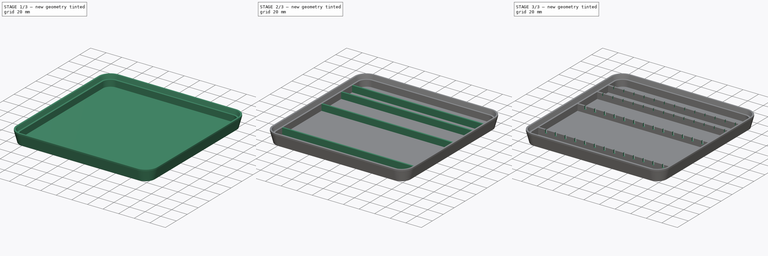
[diagram: build sequence overview — one tinted view per stage of 3, left to right]
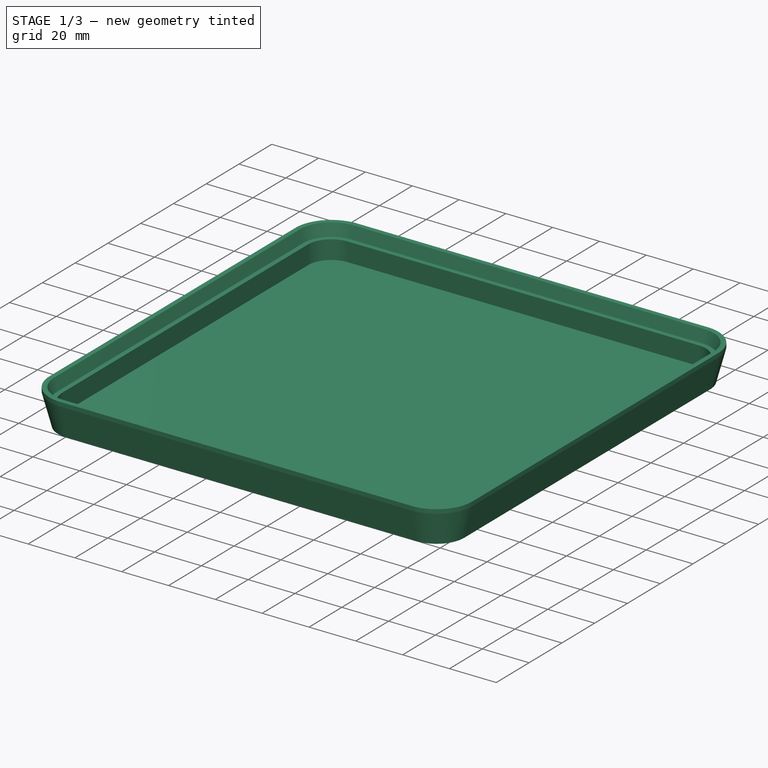
[diagram: stage 1 of 3 — iso view after this stage's code; geometry added in this stage tinted green]
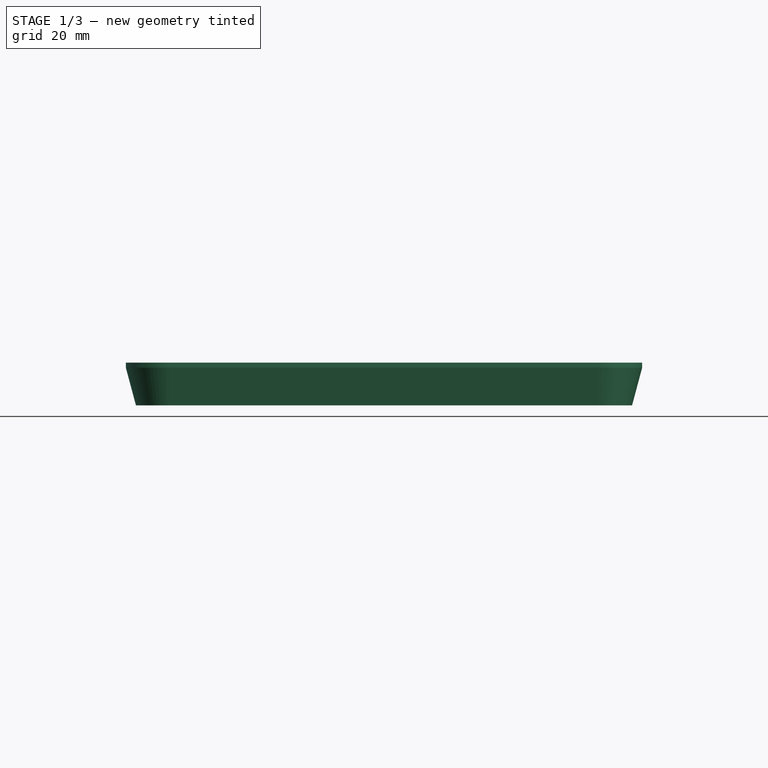
[diagram: stage 1 of 3 — front view after this stage's code; geometry added in this stage tinted green]
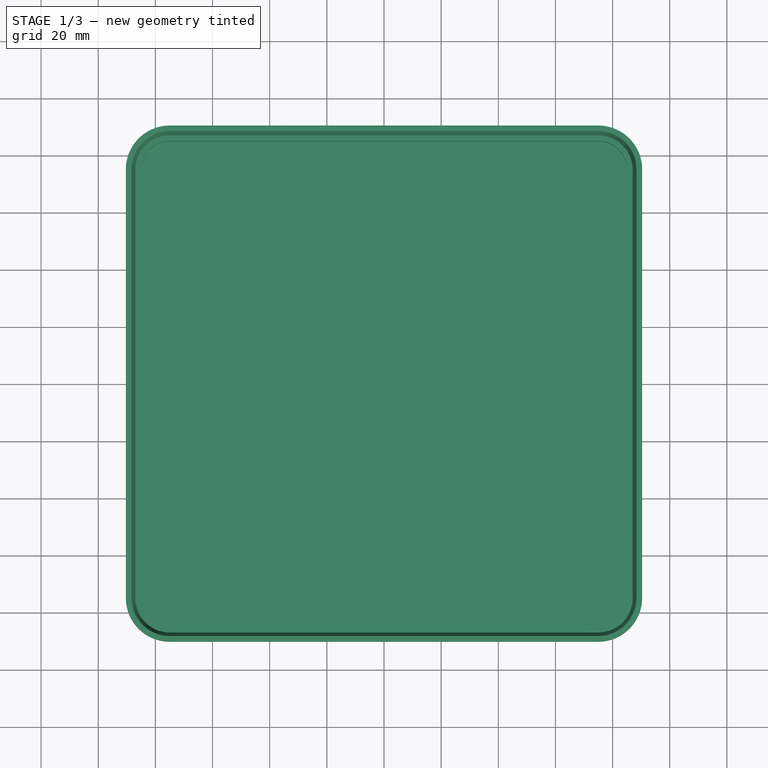
[diagram: stage 1 of 3 — top view after this stage's code; geometry added in this stage tinted green]
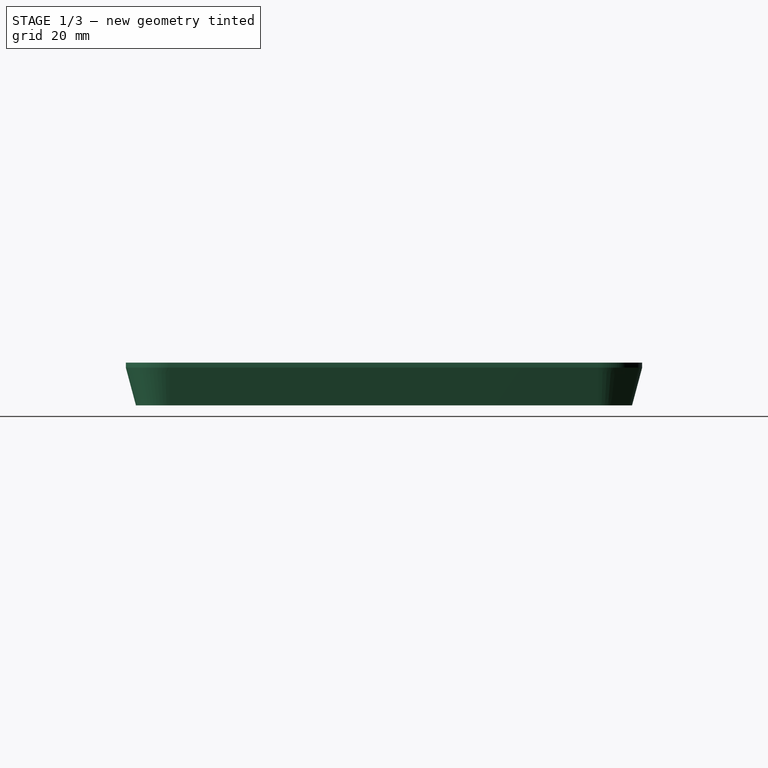
[diagram: stage 1 of 3 — right view after this stage's code; geometry added in this stage tinted green]
FCSTD DOCUMENT  (FreeCAD 1.0R39319 (Git))
Label: Box-cover
License: All rights reserved
LicenseURL: https://en.wikipedia.org/wiki/All_rights_reserved
objects: Sketcher::SketchObject×6, PartDesign::Pad×2, PartDesign::Pocket×2, PartDesign::AdditivePipe×1, PartDesign::Body×1
note: 28 computed .brp shape members not serialized (recipe doc carries the construction recipe); baked Part::Feature solids carry a one-line shape summary decoded from their .brp

FEATURE [Sketcher::SketchObject] Sketch
  ArcFitTolerance = 1e-06
  AttachmentSupport = -> [XZ_Plane]
  FullyConstrained = true
  MakeInternals = false
  MapMode = 5
  Placement = pos=(0,0,0) rot=(1,0,0;1.5708rad)
  sketch-geometry (7):
    g0: LineSegment StartX=85 StartY=0 StartZ=0 EndX=86.8 EndY=0 EndZ=0
    g1: LineSegment StartX=86.8 StartY=0 StartZ=0 EndX=90.3397 EndY=13.2105 EndZ=0
    g2: LineSegment StartX=90.3397 StartY=13.2105 StartZ=0 EndX=90.3397 EndY=15 EndZ=0
    g3: LineSegment StartX=90.3397 StartY=15 StartZ=0 EndX=88.3397 EndY=15 EndZ=0
    g4: LineSegment StartX=88.3397 StartY=15 StartZ=0 EndX=87 EndY=10 EndZ=0
    g5: LineSegment StartX=87 StartY=10 StartZ=0 EndX=85 EndY=10 EndZ=0
    g6: LineSegment StartX=85 StartY=10 StartZ=0 EndX=85 EndY=0 EndZ=0
  constraints (21):
    c: PointOnObject(g0,g-1)
    c: Coincident(g0,g1)
    c: Vertical(g2)
    c: Coincident(g2,g3)
    c: Horizontal(g3)
    c: Coincident(g3,g4)
    c: Coincident(g4,g5)
    c: Horizontal(g5)
    c: Coincident(g5,g6)
    c: Vertical(g6)
    c: Horizontal(g0)
    c: Coincident(g0,g6)
    c: Parallel(g1,g4)
    c: DistanceY(g4,g3) = 5
    c: Angle(g-1,g1) = 1.309
    c: Equal(g3,g5)
    c: DistanceX(g3,g3) = 2
    c: DistanceY(g6,g6) = 10
    c: DistanceX(g0) = 85
    c: DistanceX(g0,g0) = 1.8
    c: Coincident(g1,g2)
FEATURE [Sketcher::SketchObject] Sketch001
  ArcFitTolerance = 1e-06
  AttachmentSupport = -> [XY_Plane]
  FullyConstrained = false
  MakeInternals = false
  MapMode = 5
  sketch-geometry (20):
    g0: Circle [constr] CenterX=20 CenterY=20 CenterZ=0 NormalX=0 NormalY=0 NormalZ=1 AngleXU=0 Radius=11.75
    g1: Circle [constr] CenterX=20 CenterY=20 CenterZ=0 NormalX=0 NormalY=0 NormalZ=1 AngleXU=0 Radius=20
    g2: Circle [constr] CenterX=60 CenterY=60 CenterZ=0 NormalX=0 NormalY=0 NormalZ=1 AngleXU=0 Radius=11.75
    g3: Circle [constr] CenterX=60 CenterY=60 CenterZ=0 NormalX=0 NormalY=0 NormalZ=1 AngleXU=0 Radius=20
    g4: Circle [constr] CenterX=20 CenterY=60 CenterZ=0 NormalX=0 NormalY=0 NormalZ=1 AngleXU=0 Radius=11.75
    g5: Circle [constr] CenterX=20 CenterY=60 CenterZ=0 NormalX=0 NormalY=0 NormalZ=1 AngleXU=0 Radius=20
    g6: Circle [constr] CenterX=60 CenterY=20 CenterZ=0 NormalX=0 NormalY=0 NormalZ=1 AngleXU=0 Radius=11.75
    g7: Circle [constr] CenterX=60 CenterY=20 CenterZ=0 NormalX=0 NormalY=0 NormalZ=1 AngleXU=0 Radius=20
    g8: LineSegment StartX=-85 StartY=75 StartZ=0 EndX=-85 EndY=-75 EndZ=0
    g9: LineSegment StartX=-75 StartY=-85 StartZ=0 EndX=75 EndY=-85 EndZ=0
    g10: LineSegment StartX=85 StartY=-75 StartZ=0 EndX=85 EndY=75 EndZ=0
    g11: LineSegment StartX=75 StartY=85 StartZ=0 EndX=-75 EndY=85 EndZ=0
    g12: ArcOfCircle CenterX=-75 CenterY=75 CenterZ=0 NormalX=0 NormalY=0 NormalZ=1 AngleXU=0 Radius=10 StartAngle=1.5708 EndAngle=3.14159
    g13: GeomPoint [constr] X=-85 Y=85 Z=0
    g14: ArcOfCircle CenterX=75 CenterY=75 CenterZ=0 NormalX=0 NormalY=0 NormalZ=1 AngleXU=0 Radius=10 StartAngle=0 EndAngle=1.5708
    g15: GeomPoint [constr] X=85 Y=85 Z=0
    g16: ArcOfCircle CenterX=75 CenterY=-75 CenterZ=0 NormalX=0 NormalY=0 NormalZ=1 AngleXU=0 Radius=10 StartAngle=4.71239 EndAngle=6.28319
    g17: GeomPoint [constr] X=85 Y=-85 Z=0
    g18: ArcOfCircle CenterX=-75 CenterY=-75 CenterZ=0 NormalX=0 NormalY=0 NormalZ=1 AngleXU=0 Radius=10 StartAngle=3.14159 EndAngle=4.71239
    g19: GeomPoint [constr] X=-85 Y=-85 Z=0
  constraints (45):
    c: Diameter(g0) = 23.5
    c: Coincident(g1,g0)
    c: Diameter(g1) = 40
    c: Coincident(g3,g2)
    c: Coincident(g5,g4)
    c: Tangent(g5,g1)
    c: Tangent(g5,g3)
    c: Tangent(g3,g7)
    c: Tangent(g1,g7)
    c: Vertical(g4,g0)
    c: Horizontal(g4,g2)
    c: Equal(g3,g7)
    c: Equal(g7,g1)
    c: Equal(g1,g5)
    c: Equal(g6,g2)
    c: Equal(g2,g4)
    c: Equal(g4,g0)
    c: Tangent(g1,g-2)
    c: Vertical(g8)
    c: Vertical(g10)
    c: Horizontal(g9)
    c: Horizontal(g11)
    c: Symmetric(g13,g17,g-1)
    c: PointOnObject(g13,g8)
    c: PointOnObject(g13,g11)
    c: Tangent(g8,g12) = -1.5708
    c: Tangent(g11,g12) = -1.5708
    c: PointOnObject(g15,g11)
    c: PointOnObject(g15,g10)
    c: Tangent(g11,g14) = -1.5708
    c: Tangent(g10,g14) = -1.5708
    c: PointOnObject(g17,g10)
    c: PointOnObject(g17,g9)
    c: Tangent(g10,g16) = -1.5708
    c: Tangent(g9,g16) = -1.5708
    c: PointOnObject(g19,g9)
    c: PointOnObject(g19,g8)
    c: Tangent(g9,g18) = -1.5708
    c: Tangent(g8,g18) = -1.5708
    c: Equal(g14,g12)
    c: Equal(g12,g18)
    c: Equal(g18,g16)
    c: Radius(g14) = 10
    c: Equal(g10,g11)
    c: Distance(g-1,g10) = 85
FEATURE [PartDesign::AdditivePipe] AdditivePipe  label="ramen"
  AuxilleryCurvelinear = true
  AuxillerySpineTangent = false
  Binormal = (0,0,0)
  Mode = 0
  Placement = pos=(0,0,0) rot=(1,0,0;1.5708rad)
  Profile = -> Sketch
  Refine = true
  Spine = -> Sketch001
  SpineTangent = false
  Suppressed = false
  Transformation = 0
  Transition = 0
FEATURE [Sketcher::SketchObject] Sketch002
  ArcFitTolerance = 1e-06
  AttachmentSupport = -> [XY_Plane]
  FullyConstrained = false
  MakeInternals = false
  MapMode = 5
  sketch-geometry (20):
    g0: Circle [constr] CenterX=20 CenterY=20 CenterZ=0 NormalX=0 NormalY=0 NormalZ=1 AngleXU=0 Radius=11.75
    g1: Circle [constr] CenterX=20 CenterY=20 CenterZ=0 NormalX=0 NormalY=0 NormalZ=1 AngleXU=0 Radius=20
    g2: Circle [constr] CenterX=60 CenterY=60 CenterZ=0 NormalX=0 NormalY=0 NormalZ=1 AngleXU=0 Radius=11.75
    g3: Circle [constr] CenterX=60 CenterY=60 CenterZ=0 NormalX=0 NormalY=0 NormalZ=1 AngleXU=0 Radius=20
    g4: Circle [constr] CenterX=20 CenterY=60 CenterZ=0 NormalX=0 NormalY=0 NormalZ=1 AngleXU=0 Radius=11.75
    g5: Circle [constr] CenterX=20 CenterY=60 CenterZ=0 NormalX=0 NormalY=0 NormalZ=1 AngleXU=0 Radius=20
    g6: Circle [constr] CenterX=60 CenterY=20 CenterZ=0 NormalX=0 NormalY=0 NormalZ=1 AngleXU=0 Radius=11.75
    g7: Circle [constr] CenterX=60 CenterY=20 CenterZ=0 NormalX=0 NormalY=0 NormalZ=1 AngleXU=0 Radius=20
    g8: LineSegment StartX=-85 StartY=75 StartZ=0 EndX=-85 EndY=-75 EndZ=0
    g9: LineSegment StartX=-75 StartY=-85 StartZ=0 EndX=75 EndY=-85 EndZ=0
    g10: LineSegment StartX=85 StartY=-75 StartZ=0 EndX=85 EndY=75 EndZ=0
    g11: LineSegment StartX=75 StartY=85 StartZ=0 EndX=-75 EndY=85 EndZ=0
    g12: ArcOfCircle CenterX=-75 CenterY=75 CenterZ=0 NormalX=0 NormalY=0 NormalZ=1 AngleXU=0 Radius=10 StartAngle=1.5708 EndAngle=3.14159
    g13: GeomPoint [constr] X=-85 Y=85 Z=0
    g14: ArcOfCircle CenterX=75 CenterY=75 CenterZ=0 NormalX=0 NormalY=0 NormalZ=1 AngleXU=0 Radius=10 StartAngle=0 EndAngle=1.5708
    g15: GeomPoint [constr] X=85 Y=85 Z=0
    g16: ArcOfCircle CenterX=75 CenterY=-75 CenterZ=0 NormalX=0 NormalY=0 NormalZ=1 AngleXU=0 Radius=10 StartAngle=4.71239 EndAngle=6.28319
    g17: GeomPoint [constr] X=85 Y=-85 Z=0
    g18: ArcOfCircle CenterX=-75 CenterY=-75 CenterZ=0 NormalX=0 NormalY=0 NormalZ=1 AngleXU=0 Radius=10 StartAngle=3.14159 EndAngle=4.71239
    g19: GeomPoint [constr] X=-85 Y=-85 Z=0
  constraints (45):
    c: Diameter(g0) = 23.5
    c: Coincident(g1,g0)
    c: Diameter(g1) = 40
    c: Coincident(g3,g2)
    c: Coincident(g5,g4)
    c: Tangent(g5,g1)
    c: Tangent(g5,g3)
    c: Tangent(g3,g7)
    c: Tangent(g1,g7)
    c: Vertical(g4,g0)
    c: Horizontal(g4,g2)
    c: Equal(g3,g7)
    c: Equal(g7,g1)
    c: Equal(g1,g5)
    c: Equal(g6,g2)
    c: Equal(g2,g4)
    c: Equal(g4,g0)
    c: Tangent(g1,g-2)
    c: Vertical(g8)
    c: Vertical(g10)
    c: Horizontal(g9)
    c: Horizontal(g11)
    c: Symmetric(g13,g17,g-1)
    c: PointOnObject(g13,g8)
    c: PointOnObject(g13,g11)
    c: Tangent(g8,g12) = -1.5708
    c: Tangent(g11,g12) = -1.5708
    c: PointOnObject(g15,g11)
    c: PointOnObject(g15,g10)
    c: Tangent(g11,g14) = -1.5708
    c: Tangent(g10,g14) = -1.5708
    c: PointOnObject(g17,g10)
    c: PointOnObject(g17,g9)
    c: Tangent(g10,g16) = -1.5708
    c: Tangent(g9,g16) = -1.5708
    c: PointOnObject(g19,g9)
    c: PointOnObject(g19,g8)
    c: Tangent(g9,g18) = -1.5708
    c: Tangent(g8,g18) = -1.5708
    c: Equal(g14,g12)
    c: Equal(g12,g18)
    c: Equal(g18,g16)
    c: Radius(g14) = 10
    c: Equal(g10,g11)
    c: Distance(g-1,g10) = 85
FEATURE [PartDesign::Pad] Pad  label="boden"
  BaseFeature = -> AdditivePipe
  Direction = (0,0,1)
  Length = 2
  Length2 = 10
  Placement = pos=(0,0,0) rot=(1,0,0;1.5708rad)
  Profile = -> Sketch002
  ReferenceAxis = -> Sketch002 [N_Axis]
  Refine = true
  Suppressed = false
  Type = 0
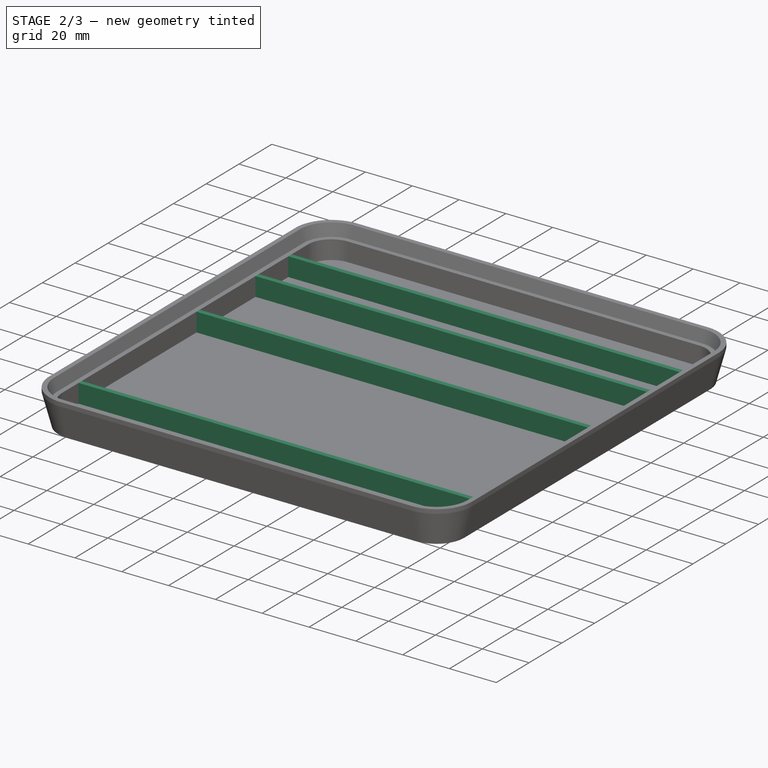
[diagram: stage 2 of 3 — iso view after this stage's code; geometry added in this stage tinted green]
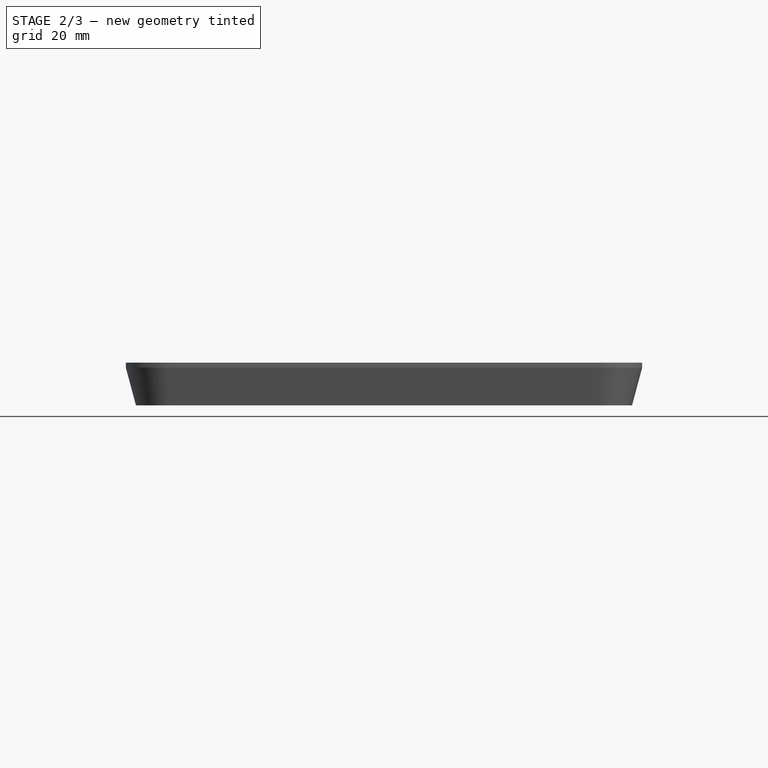
[diagram: stage 2 of 3 — front view after this stage's code; geometry added in this stage tinted green]
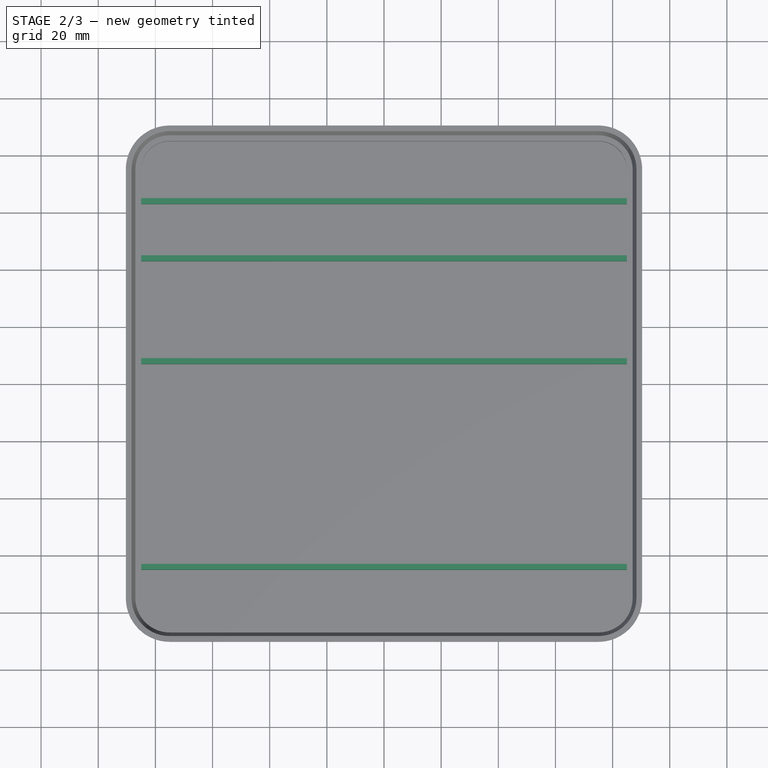
[diagram: stage 2 of 3 — top view after this stage's code; geometry added in this stage tinted green]
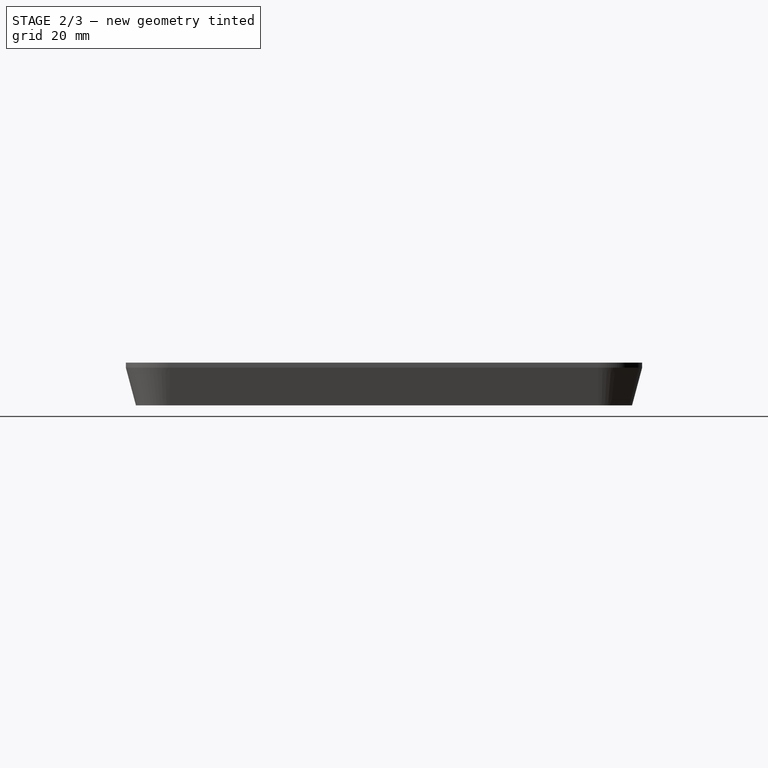
[diagram: stage 2 of 3 — right view after this stage's code; geometry added in this stage tinted green]
FEATURE [Sketcher::SketchObject] Sketch003
  ArcFitTolerance = 1e-06
  AttachmentOffset = pos=(0,0,2) rot=(0,0,1;0rad)
  AttachmentSupport = -> [XY_Plane]
  FullyConstrained = true
  MakeInternals = false
  MapMode = 5
  Placement = pos=(0,0,2) rot=(0,0,1;0rad)
  sketch-geometry (16):
    g0: LineSegment StartX=-85 StartY=-63 StartZ=0 EndX=85 EndY=-63 EndZ=0
    g1: LineSegment StartX=85 StartY=-63 StartZ=0 EndX=85 EndY=-65 EndZ=0
    g2: LineSegment StartX=85 StartY=-65 StartZ=0 EndX=-85 EndY=-65 EndZ=0
    g3: LineSegment StartX=-85 StartY=-65 StartZ=0 EndX=-85 EndY=-63 EndZ=0
    g4: LineSegment StartX=-85 StartY=9 StartZ=0 EndX=85 EndY=9 EndZ=0
    g5: LineSegment StartX=85 StartY=9 StartZ=0 EndX=85 EndY=7 EndZ=0
    g6: LineSegment StartX=85 StartY=7 StartZ=0 EndX=-85 EndY=7 EndZ=0
    g7: LineSegment StartX=-85 StartY=7 StartZ=0 EndX=-85 EndY=9 EndZ=0
    g8: LineSegment StartX=-85 StartY=45 StartZ=0 EndX=85 EndY=45 EndZ=0
    g9: LineSegment StartX=85 StartY=45 StartZ=0 EndX=85 EndY=43 EndZ=0
    g10: LineSegment StartX=85 StartY=43 StartZ=0 EndX=-85 EndY=43 EndZ=0
    g11: LineSegment StartX=-85 StartY=43 StartZ=0 EndX=-85 EndY=45 EndZ=0
    g12: LineSegment StartX=-85 StartY=65 StartZ=0 EndX=85 EndY=65 EndZ=0
    g13: LineSegment StartX=85 StartY=65 StartZ=0 EndX=85 EndY=63 EndZ=0
    g14: LineSegment StartX=85 StartY=63 StartZ=0 EndX=-85 EndY=63 EndZ=0
    g15: LineSegment StartX=-85 StartY=63 StartZ=0 EndX=-85 EndY=65 EndZ=0
  constraints (43):
    c: Horizontal(g0)
    c: Coincident(g0,g1)
    c: Vertical(g1)
    c: Coincident(g1,g2)
    c: Coincident(g2,g3)
    c: Coincident(g3,g0)
    c: Vertical(g3)
    c: Symmetric(g2,g1,g-2)
    c: DistanceX(g1) = 85
    c: DistanceY(g1,g1) = 2
    c: Horizontal(g4)
    c: Coincident(g4,g5)
    c: Vertical(g5)
    c: Coincident(g5,g6)
    c: Coincident(g6,g7)
    c: Coincident(g7,g4)
    c: Vertical(g7)
    c: Symmetric(g6,g5,g-2)
    c: Equal(g5,g1)
    c: Equal(g6,g2)
    c: DistanceY(g1,g4) = 74
    c: DistanceY(g1,g-1) = 65
    c: Horizontal(g8)
    c: Coincident(g8,g9)
    c: Vertical(g9)
    c: Coincident(g9,g10)
    c: Coincident(g10,g11)
    c: Coincident(g11,g8)
    c: Vertical(g11)
    c: Symmetric(g10,g9,g-2)
    c: Horizontal(g12)
    c: Coincident(g12,g13)
    c: Vertical(g13)
    c: Coincident(g13,g14)
    c: Coincident(g14,g15)
    c: Coincident(g15,g12)
    c: Vertical(g15)
    c: Symmetric(g14,g13,g-2)
    c: Equal(g13,g9)
    c: Equal(g9,g1)
    c: Equal(g10,g14)
    c: Equal(g14,g2)
    c: Symmetric(g12,g1,g-1)
FEATURE [PartDesign::Pad] Pad001  label="ablage"
  BaseFeature = -> Pad
  Direction = (0,0,1)
  Length = 8
  Length2 = 10
  Placement = pos=(0,0,0) rot=(1,0,0;1.5708rad)
  Profile = -> Sketch003
  ReferenceAxis = -> Sketch003 [N_Axis]
  Refine = true
  Suppressed = false
  Type = 0
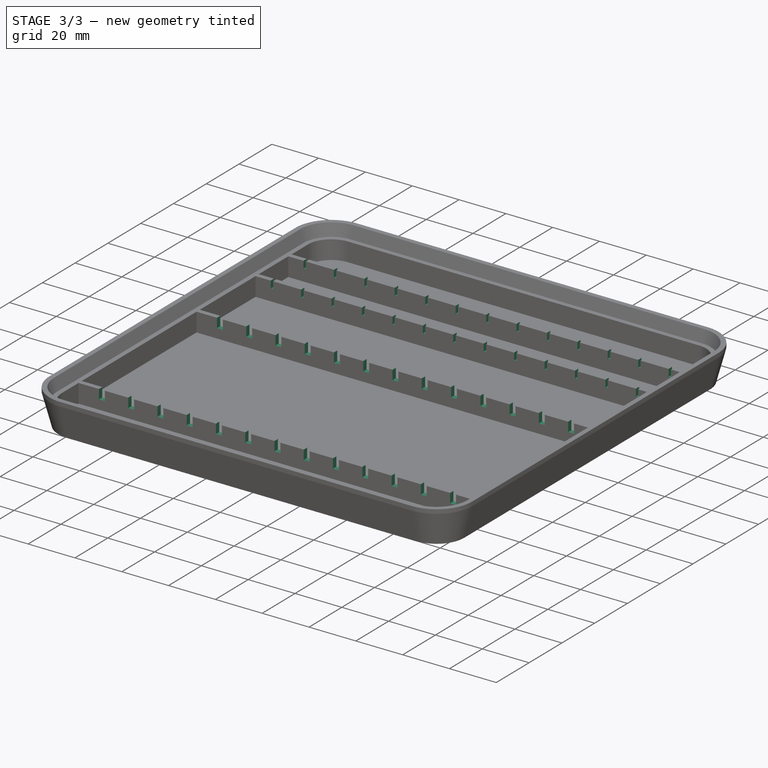
[diagram: stage 3 of 3 — iso view after this stage's code; geometry added in this stage tinted green]
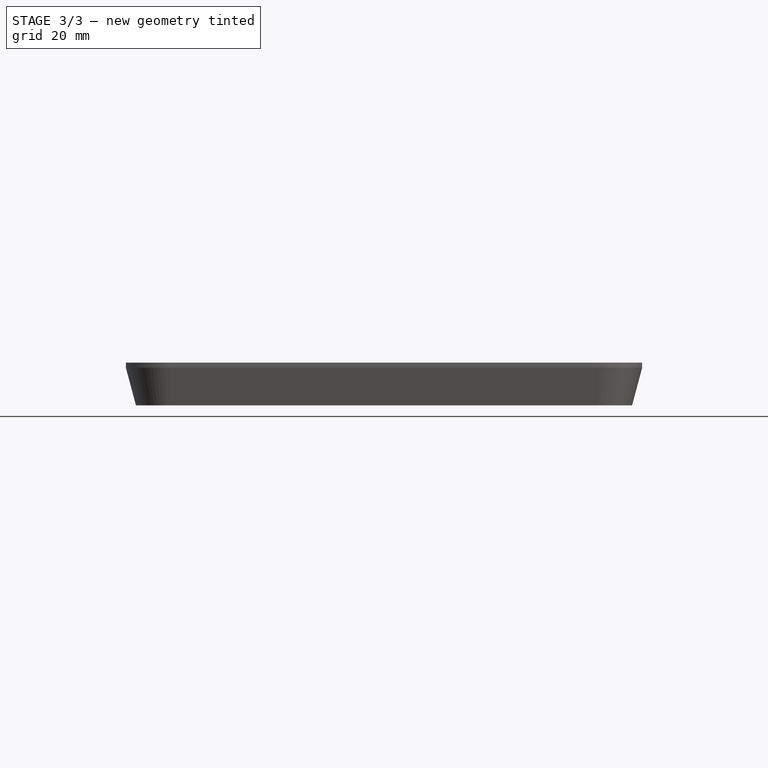
[diagram: stage 3 of 3 — front view after this stage's code; geometry added in this stage tinted green]
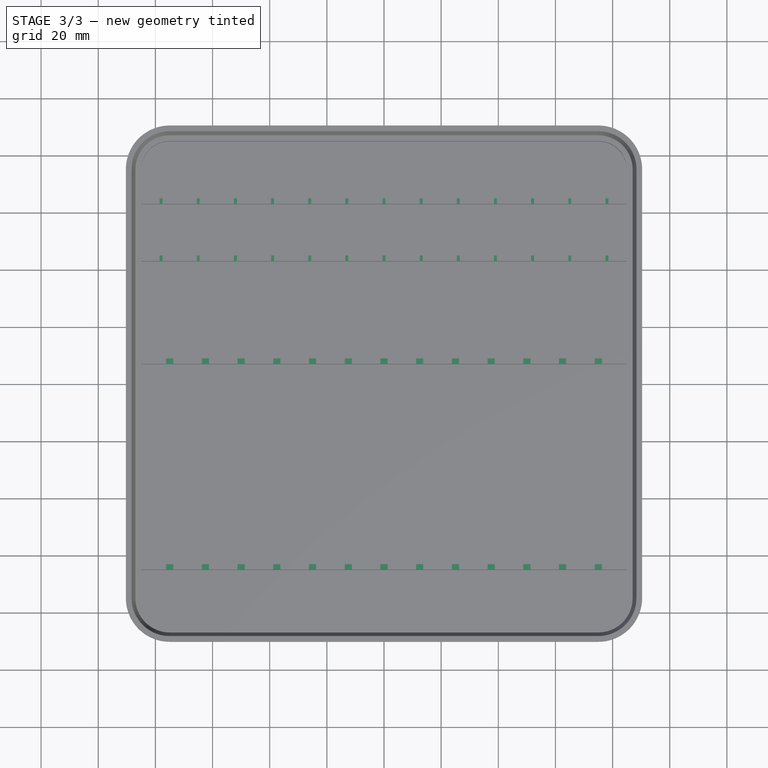
[diagram: stage 3 of 3 — top view after this stage's code; geometry added in this stage tinted green]
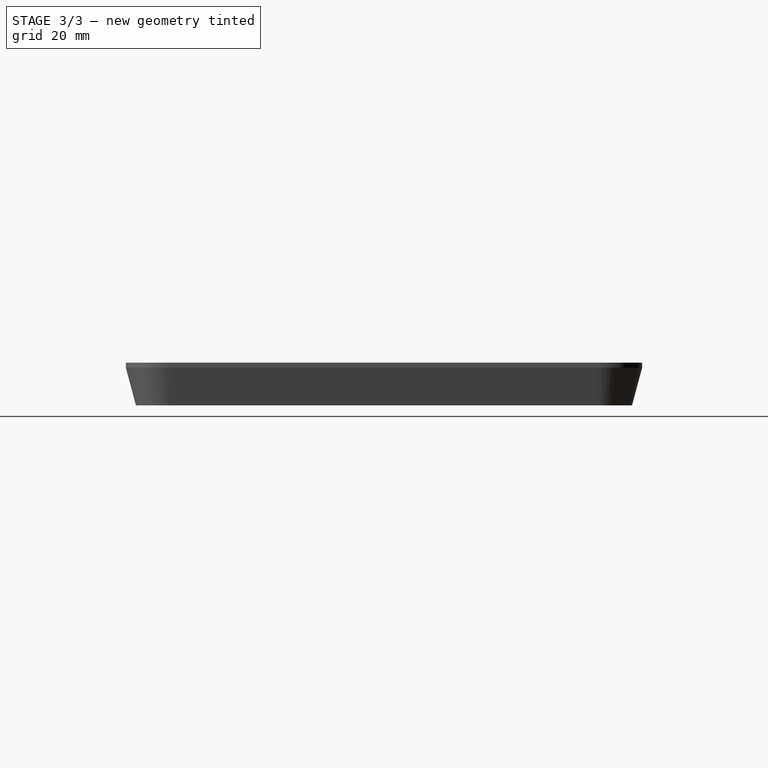
[diagram: stage 3 of 3 — right view after this stage's code; geometry added in this stage tinted green]
FEATURE [Sketcher::SketchObject] Sketch004
  ArcFitTolerance = 1e-06
  AttachmentOffset = pos=(0,0,65) rot=(0,0,1;0rad)
  AttachmentSupport = -> [XZ_Plane]
  FullyConstrained = true
  MakeInternals = false
  MapMode = 5
  Placement = pos=(0,-65,1.44e-14) rot=(1,0,0;1.5708rad)
  sketch-geometry (64):
    g0: LineSegment StartX=-1.25 StartY=10 StartZ=0 EndX=-1.25 EndY=6 EndZ=0
    g1: LineSegment StartX=-1.25 StartY=6 StartZ=0 EndX=1.25 EndY=6 EndZ=0
    g2: LineSegment StartX=1.25 StartY=6 StartZ=0 EndX=1.25 EndY=10 EndZ=0
    g3: LineSegment StartX=1.25 StartY=10 StartZ=0 EndX=-1.25 EndY=10 EndZ=0
    g4: LineSegment StartX=11.25 StartY=10 StartZ=0 EndX=11.25 EndY=6 EndZ=0
    g5: LineSegment StartX=11.25 StartY=6 StartZ=0 EndX=13.75 EndY=6 EndZ=0
    g6: LineSegment StartX=13.75 StartY=6 StartZ=0 EndX=13.75 EndY=10 EndZ=0
    g7: LineSegment StartX=13.75 StartY=10 StartZ=0 EndX=11.25 EndY=10 EndZ=0
    g8: LineSegment StartX=23.75 StartY=10 StartZ=0 EndX=23.75 EndY=6 EndZ=0
    g9: LineSegment StartX=23.75 StartY=6 StartZ=0 EndX=26.25 EndY=6 EndZ=0
    g10: LineSegment StartX=26.25 StartY=6 StartZ=0 EndX=26.25 EndY=10 EndZ=0
    g11: LineSegment StartX=26.25 StartY=10 StartZ=0 EndX=23.75 EndY=10 EndZ=0
    g12: LineSegment StartX=38.75 StartY=10 StartZ=0 EndX=38.75 EndY=6 EndZ=0
    g13: LineSegment StartX=38.75 StartY=6 StartZ=0 EndX=36.25 EndY=6 EndZ=0
    g14: LineSegment StartX=36.25 StartY=6 StartZ=0 EndX=36.25 EndY=10 EndZ=0
    g15: LineSegment StartX=36.25 StartY=10 StartZ=0 EndX=38.75 EndY=10 EndZ=0
    g16: LineSegment StartX=48.75 StartY=10 StartZ=0 EndX=48.75 EndY=6 EndZ=0
    g17: LineSegment StartX=48.75 StartY=6 StartZ=0 EndX=51.25 EndY=6 EndZ=0
    g18: LineSegment StartX=51.25 StartY=6 StartZ=0 EndX=51.25 EndY=10 EndZ=0
    g19: LineSegment StartX=51.25 StartY=10 StartZ=0 EndX=48.75 EndY=10 EndZ=0
    g20: LineSegment StartX=61.25 StartY=10 StartZ=0 EndX=61.25 EndY=6 EndZ=0
    g21: LineSegment StartX=61.25 StartY=6 StartZ=0 EndX=63.75 EndY=6 EndZ=0
    g22: LineSegment StartX=63.75 StartY=6 StartZ=0 EndX=63.75 EndY=10 EndZ=0
    g23: LineSegment StartX=63.75 StartY=10 StartZ=0 EndX=61.25 EndY=10 EndZ=0
    g24: LineSegment StartX=73.75 StartY=10 StartZ=0 EndX=73.75 EndY=6 EndZ=0
    g25: LineSegment StartX=73.75 StartY=6 StartZ=0 EndX=76.25 EndY=6 EndZ=0
    g26: LineSegment StartX=76.25 StartY=6 StartZ=0 EndX=76.25 EndY=10 EndZ=0
    g27: LineSegment StartX=76.25 StartY=10 StartZ=0 EndX=73.75 EndY=10 EndZ=0
    g28: LineSegment [constr] StartX=63.75 StartY=6 StartZ=0 EndX=73.75 EndY=6 EndZ=0
    g29: LineSegment StartX=-73.75 StartY=10 StartZ=0 EndX=-73.75 EndY=6 EndZ=0
    g30: LineSegment StartX=-73.75 StartY=6 StartZ=0 EndX=-76.25 EndY=6 EndZ=0
    g31: LineSegment StartX=-76.25 StartY=6 StartZ=0 EndX=-76.25 EndY=10 EndZ=0
    g32: LineSegment StartX=-76.25 StartY=10 StartZ=0 EndX=-73.75 EndY=10 EndZ=0
    g33: LineSegment [constr] StartX=51.25 StartY=6 StartZ=0 EndX=61.25 EndY=6 EndZ=0
    g34: LineSegment [constr] StartX=38.75 StartY=6 StartZ=0 EndX=48.75 EndY=6 EndZ=0
    g35: LineSegment [constr] StartX=26.25 StartY=6 StartZ=0 EndX=36.25 EndY=6 EndZ=0
    g36: LineSegment [constr] StartX=13.75 StartY=6 StartZ=0 EndX=23.75 EndY=6 EndZ=0
    g37: LineSegment [constr] StartX=1.25 StartY=6 StartZ=0 EndX=11.25 EndY=6 EndZ=0
    g38: LineSegment StartX=-63.75 StartY=10 StartZ=0 EndX=-63.75 EndY=6 EndZ=0
    g39: LineSegment StartX=-63.75 StartY=6 StartZ=0 EndX=-61.25 EndY=6 EndZ=0
    g40: LineSegment StartX=-61.25 StartY=6 StartZ=0 EndX=-61.25 EndY=10 EndZ=0
    g41: LineSegment StartX=-61.25 StartY=10 StartZ=0 EndX=-63.75 EndY=10 EndZ=0
    g42: LineSegment [constr] StartX=-61.25 StartY=6 StartZ=0 EndX=-51.25 EndY=6 EndZ=0
    g43: LineSegment StartX=-51.25 StartY=10 StartZ=0 EndX=-51.25 EndY=6 EndZ=0
    g44: LineSegment StartX=-51.25 StartY=6 StartZ=0 EndX=-48.75 EndY=6 EndZ=0
    g45: LineSegment StartX=-48.75 StartY=6 StartZ=0 EndX=-48.75 EndY=10 EndZ=0
    g46: LineSegment StartX=-48.75 StartY=10 StartZ=0 EndX=-51.25 EndY=10 EndZ=0
    g47: LineSegment [constr] StartX=-48.75 StartY=6 StartZ=0 EndX=-38.75 EndY=6 EndZ=0
    g48: LineSegment [constr] StartX=-73.75 StartY=6 StartZ=0 EndX=-63.75 EndY=6 EndZ=0
    g49: LineSegment StartX=-38.75 StartY=10 StartZ=0 EndX=-38.75 EndY=6 EndZ=0
    g50: LineSegment StartX=-38.75 StartY=6 StartZ=0 EndX=-36.25 EndY=6 EndZ=0
    g51: LineSegment StartX=-36.25 StartY=6 StartZ=0 EndX=-36.25 EndY=10 EndZ=0
    g52: LineSegment StartX=-36.25 StartY=10 StartZ=0 EndX=-38.75 EndY=10 EndZ=0
    g53: LineSegment [constr] StartX=-36.25 StartY=6 StartZ=0 EndX=-26.25 EndY=6 EndZ=0
    g54: LineSegment StartX=-26.25 StartY=10 StartZ=0 EndX=-26.25 EndY=6 EndZ=0
    g55: LineSegment StartX=-26.25 StartY=6 StartZ=0 EndX=-23.75 EndY=6 EndZ=0
    g56: LineSegment StartX=-23.75 StartY=6 StartZ=0 EndX=-23.75 EndY=10 EndZ=0
    g57: LineSegment StartX=-23.75 StartY=10 StartZ=0 EndX=-26.25 EndY=10 EndZ=0
    g58: LineSegment [constr] StartX=-23.75 StartY=6 StartZ=0 EndX=-13.75 EndY=6 EndZ=0
    g59: LineSegment StartX=-13.75 StartY=10 StartZ=0 EndX=-13.75 EndY=6 EndZ=0
    g60: LineSegment StartX=-13.75 StartY=6 StartZ=0 EndX=-11.25 EndY=6 EndZ=0
    g61: LineSegment StartX=-11.25 StartY=6 StartZ=0 EndX=-11.25 EndY=10 EndZ=0
    g62: LineSegment StartX=-11.25 StartY=10 StartZ=0 EndX=-13.75 EndY=10 EndZ=0
    g63: LineSegment [constr] StartX=-11.25 StartY=6 StartZ=0 EndX=-1.25 EndY=6 EndZ=0
  constraints (179):
    c: Vertical(g0)
    c: Coincident(g1,g2)
    c: Vertical(g2)
    c: Coincident(g2,g3)
    c: Coincident(g3,g0)
    c: Horizontal(g3)
    c: DistanceX(g3,g3) = 2.5
    c: DistanceY(g2,g2) = 4
    c: DistanceY(g1) = 6
    c: Symmetric(g1,g0,g-2)
    c: Coincident(g4,g5)
    c: Coincident(g5,g6)
    c: Coincident(g6,g7)
    c: Coincident(g7,g4)
    c: Vertical(g4)
    c: Vertical(g6)
    c: Horizontal(g5)
    c: Horizontal(g7)
    c: Coincident(g8,g9)
    c: Coincident(g9,g10)
    c: Coincident(g10,g11)
    c: Coincident(g11,g8)
    c: Vertical(g8)
    c: Vertical(g10)
    c: Horizontal(g9)
    c: Horizontal(g11)
    c: Coincident(g12,g13)
    c: Coincident(g13,g14)
    c: Coincident(g14,g15)
    c: Coincident(g15,g12)
    c: Vertical(g12)
    c: Vertical(g14)
    c: Horizontal(g13)
    c: Horizontal(g15)
    c: Coincident(g16,g17)
    c: Coincident(g17,g18)
    c: Coincident(g18,g19)
    c: Coincident(g19,g16)
    c: Vertical(g16)
    c: Vertical(g18)
    c: Horizontal(g17)
    c: Horizontal(g19)
    c: Coincident(g20,g21)
    c: Coincident(g21,g22)
    c: Coincident(g22,g23)
    c: Coincident(g23,g20)
    c: Vertical(g20)
    c: Vertical(g22)
    c: Horizontal(g21)
    c: Horizontal(g23)
    c: Coincident(g24,g25)
    c: Coincident(g25,g26)
    c: Coincident(g26,g27)
    c: Coincident(g27,g24)
    c: Vertical(g24)
    c: Vertical(g26)
    c: Horizontal(g25)
    c: Horizontal(g27)
    c: Equal(g7,g11)
    c: Equal(g11,g15)
    c: Equal(g15,g19)
    c: Equal(g19,g23)
    c: Equal(g23,g27)
    c: Equal(g26,g22)
    c: Equal(g22,g18)
    c: Equal(g18,g14)
    c: Equal(g14,g10)
    c: Equal(g10,g6)
    c: Equal(g6,g2)
    c: Coincident(g21,g28)
    c: Horizontal(g28)
    c: Coincident(g28,g24)
    c: DistanceX(g1,g4) = 10
    c: Coincident(g29,g30)
    c: Coincident(g30,g31)
    c: Coincident(g31,g32)
    c: Coincident(g32,g29)
    c: Vertical(g29)
    c: Vertical(g31)
    c: Horizontal(g30)
    c: Horizontal(g32)
    c: Equal(g7,g3)
    c: Coincident(g17,g33)
    c: Horizontal(g33)
    c: Coincident(g12,g34)
    c: Coincident(g34,g16)
    c: Horizontal(g34)
    c: Coincident(g20,g33)
    c: Coincident(g9,g35)
    c: Horizontal(g35)
    c: Coincident(g5,g36)
    c: Horizontal(g36)
    c: Coincident(g1,g37)
    c: Horizontal(g37)
    c: Coincident(g4,g37)
    c: Coincident(g8,g36)
    c: Coincident(g13,g35)
    c: Equal(g35,g36)
    c: Equal(g36,g37)
    c: Equal(g28,g33)
    c: Equal(g33,g34)
    c: Equal(g34,g37)
    c: Equal(g32,g3)
    c: Equal(g29,g2)
    c: Coincident(g38,g39)
    c: Coincident(g39,g40)
    c: Coincident(g40,g41)
    c: Coincident(g41,g38)
    c: Vertical(g38)
    c: Vertical(g40)
    c: Horizontal(g39)
    c: Horizontal(g41)
    c: Coincident(g39,g42)
    c: Horizontal(g42)
    c: Equal(g41,g3)
    c: Equal(g40,g2)
    c: Coincident(g43,g44)
    c: Coincident(g44,g45)
    c: Coincident(g45,g46)
    c: Coincident(g46,g43)
    c: Vertical(g43)
    c: Vertical(g45)
    c: Horizontal(g44)
    c: Horizontal(g46)
    c: Coincident(g44,g47)
    c: Horizontal(g47)
    c: Equal(g46,g3)
    c: Equal(g45,g2)
    c: Coincident(g42,g43)
    c: Coincident(g29,g48)
    c: Horizontal(g48)
    c: Coincident(g38,g48)
    c: Equal(g48,g42)
    c: Equal(g42,g47)
    c: Coincident(g49,g50)
    c: Coincident(g50,g51)
    c: Coincident(g51,g52)
    c: Coincident(g52,g49)
    c: Vertical(g49)
    c: Vertical(g51)
    c: Horizontal(g50)
    c: Horizontal(g52)
    c: Coincident(g50,g53)
    c: Horizontal(g53)
    c: Equal(g52,g3)
    c: Equal(g51,g2)
    c: Equal(g53,g47)
    c: Coincident(g47,g49)
    c: Coincident(g54,g55)
    c: Coincident(g55,g56)
    c: Coincident(g56,g57)
    c: Coincident(g57,g54)
    c: Vertical(g54)
    c: Vertical(g56)
    c: Horizontal(g55)
    c: Horizontal(g57)
    c: Coincident(g55,g58)
    c: Horizontal(g58)
    c: Equal(g58,g53)
    c: Equal(g57,g3)
    c: Equal(g56,g2)
    c: Coincident(g53,g54)
    c: Coincident(g59,g60)
    c: Coincident(g60,g61)
    c: Coincident(g61,g62)
    c: Coincident(g62,g59)
    c: Vertical(g59)
    c: Vertical(g61)
    c: Horizontal(g60)
    c: Horizontal(g62)
    c: Coincident(g60,g63)
    c: Horizontal(g63)
    c: Equal(g62,g3)
    c: Equal(g61,g2)
    c: Coincident(g0,g1)
    c: Coincident(g0,g63)
    c: Coincident(g58,g59)
    c: Equal(g63,g58)
    c: Equal(g63,g37)
FEATURE [PartDesign::Pocket] Pocket  label="slides"
  BaseFeature = -> Pad001
  Direction = (0,1,-2e-16)
  Length = 76
  Length2 = 5
  Placement = pos=(0,0,0) rot=(1,0,0;1.5708rad)
  Profile = -> Sketch004
  ReferenceAxis = -> Sketch004 [N_Axis]
  Refine = true
  Suppressed = false
  Type = 0
FEATURE [Sketcher::SketchObject] Sketch005
  ArcFitTolerance = 1e-06
  AttachmentOffset = pos=(0,0,-65) rot=(0,0,1;0rad)
  AttachmentSupport = -> [XZ_Plane]
  FullyConstrained = true
  MakeInternals = false
  MapMode = 5
  Placement = pos=(0,65,-1.44e-14) rot=(1,0,0;1.5708rad)
  sketch-geometry (64):
    g0: LineSegment StartX=-0.5 StartY=10 StartZ=0 EndX=-0.5 EndY=7 EndZ=0
    g1: LineSegment StartX=-0.5 StartY=7 StartZ=0 EndX=0.5 EndY=7 EndZ=0
    g2: LineSegment StartX=0.5 StartY=7 StartZ=0 EndX=0.5 EndY=10 EndZ=0
    g3: LineSegment StartX=0.5 StartY=10 StartZ=0 EndX=-0.5 EndY=10 EndZ=0
    g4: LineSegment StartX=12.5 StartY=10 StartZ=0 EndX=12.5 EndY=7 EndZ=0
    g5: LineSegment StartX=12.5 StartY=7 StartZ=0 EndX=13.5 EndY=7 EndZ=0
    g6: LineSegment StartX=13.5 StartY=7 StartZ=0 EndX=13.5 EndY=10 EndZ=0
    g7: LineSegment StartX=13.5 StartY=10 StartZ=0 EndX=12.5 EndY=10 EndZ=0
    g8: LineSegment StartX=25.5 StartY=10 StartZ=0 EndX=25.5 EndY=7 EndZ=0
    g9: LineSegment StartX=25.5 StartY=7 StartZ=0 EndX=26.5 EndY=7 EndZ=0
    g10: LineSegment StartX=26.5 StartY=7 StartZ=0 EndX=26.5 EndY=10 EndZ=0
    g11: LineSegment StartX=26.5 StartY=10 StartZ=0 EndX=25.5 EndY=10 EndZ=0
    g12: LineSegment StartX=38.5 StartY=10 StartZ=0 EndX=38.5 EndY=7 EndZ=0
    g13: LineSegment StartX=38.5 StartY=7 StartZ=0 EndX=39.5 EndY=7 EndZ=0
    g14: LineSegment StartX=39.5 StartY=7 StartZ=0 EndX=39.5 EndY=10 EndZ=0
    g15: LineSegment StartX=39.5 StartY=10 StartZ=0 EndX=38.5 EndY=10 EndZ=0
    g16: LineSegment [constr] StartX=12.5 StartY=7 StartZ=0 EndX=0.5 EndY=7 EndZ=0
    g17: LineSegment [constr] StartX=25.5 StartY=7 StartZ=0 EndX=13.5 EndY=7 EndZ=0
    g18: LineSegment [constr] StartX=38.5 StartY=7 StartZ=0 EndX=26.5 EndY=7 EndZ=0
    g19: LineSegment StartX=51.5 StartY=10 StartZ=0 EndX=51.5 EndY=7 EndZ=0
    g20: LineSegment StartX=51.5 StartY=7 StartZ=0 EndX=52.5 EndY=7 EndZ=0
    g21: LineSegment StartX=52.5 StartY=7 StartZ=0 EndX=52.5 EndY=10 EndZ=0
    g22: LineSegment StartX=52.5 StartY=10 StartZ=0 EndX=51.5 EndY=10 EndZ=0
    g23: LineSegment StartX=64.5 StartY=10 StartZ=0 EndX=64.5 EndY=7 EndZ=0
    g24: LineSegment StartX=64.5 StartY=7 StartZ=0 EndX=65.5 EndY=7 EndZ=0
    g25: LineSegment StartX=65.5 StartY=7 StartZ=0 EndX=65.5 EndY=10 EndZ=0
    g26: LineSegment StartX=65.5 StartY=10 StartZ=0 EndX=64.5 EndY=10 EndZ=0
    g27: LineSegment StartX=77.5 StartY=10 StartZ=0 EndX=77.5 EndY=7 EndZ=0
    g28: LineSegment StartX=77.5 StartY=7 StartZ=0 EndX=78.5 EndY=7 EndZ=0
    g29: LineSegment StartX=78.5 StartY=7 StartZ=0 EndX=78.5 EndY=10 EndZ=0
    g30: LineSegment StartX=78.5 StartY=10 StartZ=0 EndX=77.5 EndY=10 EndZ=0
    g31: LineSegment [constr] StartX=51.5 StartY=7 StartZ=0 EndX=39.5 EndY=7 EndZ=0
    g32: LineSegment [constr] StartX=64.5 StartY=7 StartZ=0 EndX=52.5 EndY=7 EndZ=0
    g33: LineSegment [constr] StartX=77.5 StartY=7 StartZ=0 EndX=65.5 EndY=7 EndZ=0
    g34: LineSegment StartX=-78.5 StartY=10 StartZ=0 EndX=-78.5 EndY=7 EndZ=0
    g35: LineSegment StartX=-78.5 StartY=7 StartZ=0 EndX=-77.5 EndY=7 EndZ=0
    g36: LineSegment StartX=-77.5 StartY=7 StartZ=0 EndX=-77.5 EndY=10 EndZ=0
    g37: LineSegment StartX=-77.5 StartY=10 StartZ=0 EndX=-78.5 EndY=10 EndZ=0
    g38: LineSegment StartX=-65.5 StartY=10 StartZ=0 EndX=-65.5 EndY=7 EndZ=0
    g39: LineSegment StartX=-65.5 StartY=7 StartZ=0 EndX=-64.5 EndY=7 EndZ=0
    g40: LineSegment StartX=-64.5 StartY=7 StartZ=0 EndX=-64.5 EndY=10 EndZ=0
    g41: LineSegment StartX=-64.5 StartY=10 StartZ=0 EndX=-65.5 EndY=10 EndZ=0
    g42: LineSegment StartX=-52.5 StartY=10 StartZ=0 EndX=-52.5 EndY=7 EndZ=0
    g43: LineSegment StartX=-52.5 StartY=7 StartZ=0 EndX=-51.5 EndY=7 EndZ=0
    g44: LineSegment StartX=-51.5 StartY=7 StartZ=0 EndX=-51.5 EndY=10 EndZ=0
    g45: LineSegment StartX=-51.5 StartY=10 StartZ=0 EndX=-52.5 EndY=10 EndZ=0
    g46: LineSegment [constr] StartX=-65.5 StartY=7 StartZ=0 EndX=-77.5 EndY=7 EndZ=0
    g47: LineSegment [constr] StartX=-52.5 StartY=7 StartZ=0 EndX=-64.5 EndY=7 EndZ=0
    g48: LineSegment StartX=-39.5 StartY=10 StartZ=0 EndX=-39.5 EndY=7 EndZ=0
    g49: LineSegment StartX=-39.5 StartY=7 StartZ=0 EndX=-38.5 EndY=7 EndZ=0
    g50: LineSegment StartX=-38.5 StartY=7 StartZ=0 EndX=-38.5 EndY=10 EndZ=0
    g51: LineSegment StartX=-38.5 StartY=10 StartZ=0 EndX=-39.5 EndY=10 EndZ=0
    g52: LineSegment StartX=-26.5 StartY=10 StartZ=0 EndX=-26.5 EndY=7 EndZ=0
    g53: LineSegment StartX=-26.5 StartY=7 StartZ=0 EndX=-25.5 EndY=7 EndZ=0
    g54: LineSegment StartX=-25.5 StartY=7 StartZ=0 EndX=-25.5 EndY=10 EndZ=0
    g55: LineSegment StartX=-25.5 StartY=10 StartZ=0 EndX=-26.5 EndY=10 EndZ=0
    g56: LineSegment StartX=-13.5 StartY=10 StartZ=0 EndX=-13.5 EndY=7 EndZ=0
    g57: LineSegment StartX=-13.5 StartY=7 StartZ=0 EndX=-12.5 EndY=7 EndZ=0
    g58: LineSegment StartX=-12.5 StartY=7 StartZ=0 EndX=-12.5 EndY=10 EndZ=0
    g59: LineSegment StartX=-12.5 StartY=10 StartZ=0 EndX=-13.5 EndY=10 EndZ=0
    g60: LineSegment [constr] StartX=-39.5 StartY=7 StartZ=0 EndX=-51.5 EndY=7 EndZ=0
    g61: LineSegment [constr] StartX=-26.5 StartY=7 StartZ=0 EndX=-38.5 EndY=7 EndZ=0
    g62: LineSegment [constr] StartX=-13.5 StartY=7 StartZ=0 EndX=-25.5 EndY=7 EndZ=0
    g63: LineSegment [constr] StartX=-12.5 StartY=7 StartZ=0 EndX=-0.5 EndY=7 EndZ=0
  constraints (179):
    c: Coincident(g0,g1)
    c: Coincident(g1,g2)
    c: Coincident(g2,g3)
    c: Coincident(g3,g0)
    c: Vertical(g0)
    c: Vertical(g2)
    c: Horizontal(g3)
    c: Symmetric(g1,g0,g-2)
    c: DistanceY(g2,g2) = 3
    c: DistanceX(g3,g3) = 1
    c: DistanceY(g1) = 7
    c: Coincident(g4,g5)
    c: Coincident(g5,g6)
    c: Coincident(g6,g7)
    c: Coincident(g7,g4)
    c: Vertical(g4)
    c: Vertical(g6)
    c: Horizontal(g5)
    c: Horizontal(g7)
    c: Coincident(g8,g9)
    c: Coincident(g9,g10)
    c: Coincident(g10,g11)
    c: Coincident(g11,g8)
    c: Vertical(g8)
    c: Vertical(g10)
    c: Horizontal(g9)
    c: Horizontal(g11)
    c: Coincident(g12,g13)
    c: Coincident(g13,g14)
    c: Coincident(g14,g15)
    c: Coincident(g15,g12)
    c: Vertical(g12)
    c: Vertical(g14)
    c: Horizontal(g13)
    c: Horizontal(g15)
    c: Coincident(g4,g16)
    c: Horizontal(g16)
    c: Coincident(g8,g17)
    c: Horizontal(g17)
    c: Coincident(g12,g18)
    c: Horizontal(g18)
    c: Coincident(g9,g18)
    c: Coincident(g5,g17)
    c: Equal(g16,g17)
    c: Equal(g17,g18)
    c: Equal(g7,g3)
    c: Equal(g11,g15)
    c: Equal(g15,g3)
    c: Equal(g14,g10)
    c: Equal(g10,g6)
    c: Equal(g6,g2)
    c: Coincident(g19,g20)
    c: Coincident(g20,g21)
    c: Coincident(g21,g22)
    c: Coincident(g22,g19)
    c: Vertical(g19)
    c: Vertical(g21)
    c: Horizontal(g20)
    c: Horizontal(g22)
    c: Coincident(g23,g24)
    c: Coincident(g24,g25)
    c: Coincident(g25,g26)
    c: Coincident(g26,g23)
    c: Vertical(g23)
    c: Vertical(g25)
    c: Horizontal(g24)
    c: Horizontal(g26)
    c: Coincident(g27,g28)
    c: Coincident(g28,g29)
    c: Coincident(g29,g30)
    c: Coincident(g30,g27)
    c: Vertical(g27)
    c: Vertical(g29)
    c: Horizontal(g28)
    c: Horizontal(g30)
    c: Coincident(g19,g31)
    c: Horizontal(g31)
    c: Coincident(g23,g32)
    c: Horizontal(g32)
    c: Coincident(g27,g33)
    c: Horizontal(g33)
    c: Coincident(g24,g33)
    c: Coincident(g20,g32)
    c: Equal(g31,g32)
    c: Equal(g32,g33)
    c: Equal(g26,g30)
    c: Equal(g29,g25)
    c: Equal(g25,g21)
    c: Equal(g22,g3)
    c: Equal(g21,g2)
    c: Equal(g30,g3)
    c: Coincident(g13,g31)
    c: Equal(g31,g18)
    c: Coincident(g1,g16)
    c: Coincident(g34,g35)
    c: Coincident(g35,g36)
    c: Coincident(g36,g37)
    c: Coincident(g37,g34)
    c: Vertical(g34)
    c: Vertical(g36)
    c: Horizontal(g35)
    c: Horizontal(g37)
    c: Coincident(g38,g39)
    c: Coincident(g39,g40)
    c: Coincident(g40,g41)
    c: Coincident(g41,g38)
    c: Vertical(g38)
    c: Vertical(g40)
    c: Horizontal(g39)
    c: Horizontal(g41)
    c: Coincident(g42,g43)
    c: Coincident(g43,g44)
    c: Coincident(g44,g45)
    c: Coincident(g45,g42)
    c: Vertical(g42)
    c: Vertical(g44)
    c: Horizontal(g43)
    c: Horizontal(g45)
    c: Coincident(g38,g46)
    c: Horizontal(g46)
    c: Coincident(g42,g47)
    c: Horizontal(g47)
    c: Coincident(g39,g47)
    c: Coincident(g35,g46)
    c: Equal(g46,g47)
    c: Equal(g41,g45)
    c: Equal(g44,g40)
    c: Equal(g40,g36)
    c: Coincident(g48,g49)
    c: Coincident(g49,g50)
    c: Coincident(g50,g51)
    c: Coincident(g51,g48)
    c: Vertical(g48)
    c: Vertical(g50)
    c: Horizontal(g49)
    c: Horizontal(g51)
    c: Coincident(g52,g53)
    c: Coincident(g53,g54)
    c: Coincident(g54,g55)
    c: Coincident(g55,g52)
    c: Vertical(g52)
    c: Vertical(g54)
    c: Horizontal(g53)
    c: Horizontal(g55)
    c: Coincident(g56,g57)
    c: Coincident(g57,g58)
    c: Coincident(g58,g59)
    c: Coincident(g59,g56)
    c: Vertical(g56)
    c: Vertical(g58)
    c: Horizontal(g57)
    c: Horizontal(g59)
    c: Coincident(g48,g60)
    c: Horizontal(g60)
    c: Coincident(g52,g61)
    c: Horizontal(g61)
    c: Coincident(g56,g62)
    c: Horizontal(g62)
    c: Coincident(g53,g62)
    c: Coincident(g49,g61)
    c: Equal(g60,g61)
    c: Equal(g61,g62)
    c: Equal(g55,g59)
    c: Equal(g58,g54)
    c: Equal(g54,g50)
    c: Coincident(g43,g60)
    c: Equal(g60,g47)
    c: Equal(g36,g2)
    c: Equal(g48,g2)
    c: Equal(g37,g3)
    c: Equal(g45,g51)
    c: Equal(g51,g55)
    c: Equal(g59,g3)
    c: Coincident(g57,g63)
    c: Horizontal(g63)
    c: Coincident(g0,g63)
    c: Equal(g63,g62)
    c: DistanceX(g16,g16) = 12
    c: Equal(g63,g16)
FEATURE [PartDesign::Pocket] Pocket001  label="cover"
  BaseFeature = -> Pocket
  Direction = (0,1,-2e-16)
  Length = 22
  Length2 = 5
  Placement = pos=(0,0,0) rot=(1,0,0;1.5708rad)
  Profile = -> Sketch005
  ReferenceAxis = -> Sketch005 [N_Axis]
  Refine = true
  Reversed = true
  Suppressed = false
  Type = 0
FEATURE [PartDesign::Body] Body
  AllowCompound = false
  Group = -> [Sketch,Sketch001,AdditivePipe,Sketch002,Pad,Sketch003,Pad001,Sketch004,Pocket,Sketch005,Pocket001]
  Origin = -> Origin
  Tip = -> Pocket001
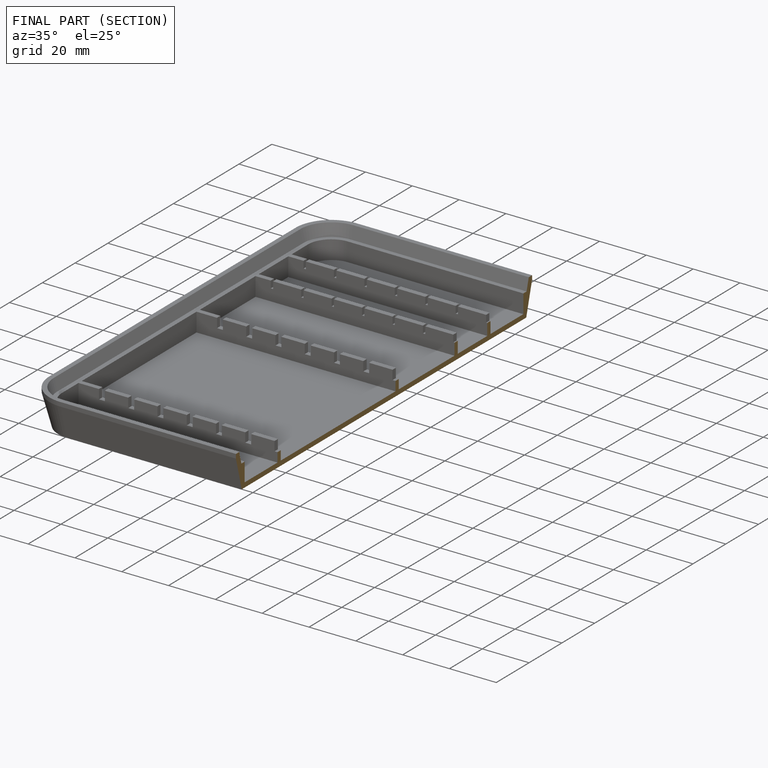
[diagram: finished part — half-section view (interior)]
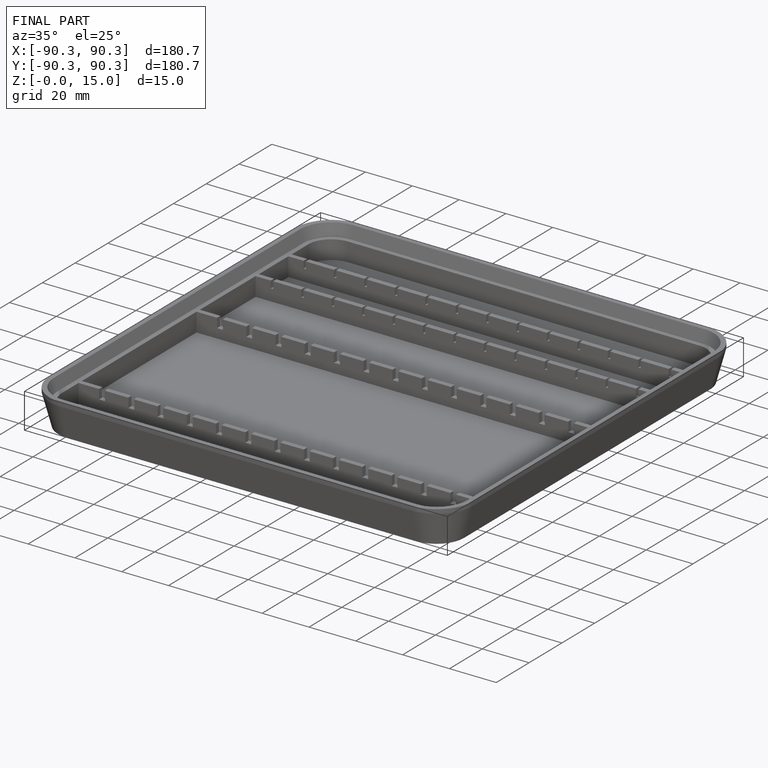
[diagram: finished part — iso view with bounding-box wireframe]
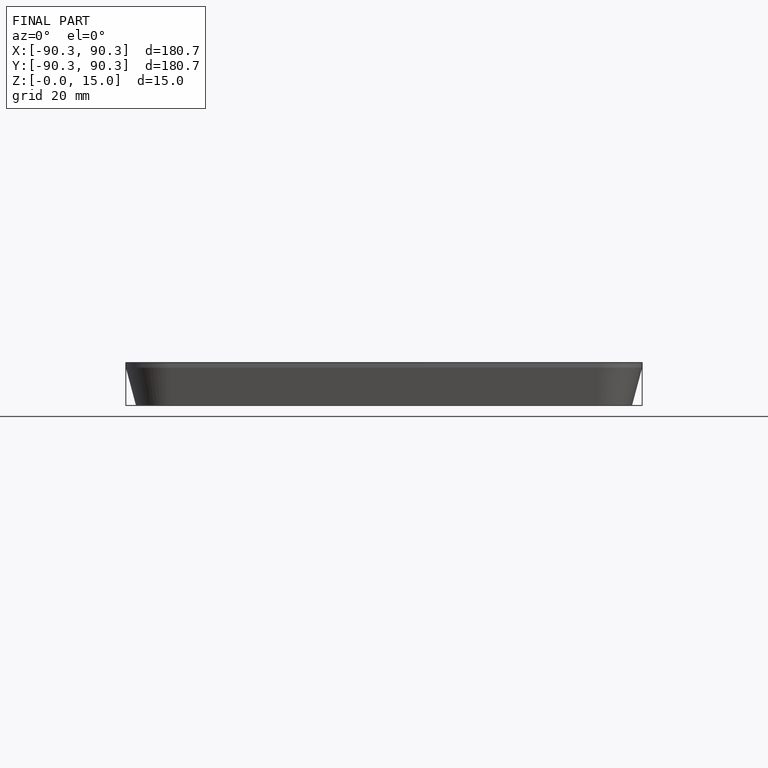
[diagram: finished part — front view with bounding-box wireframe]
